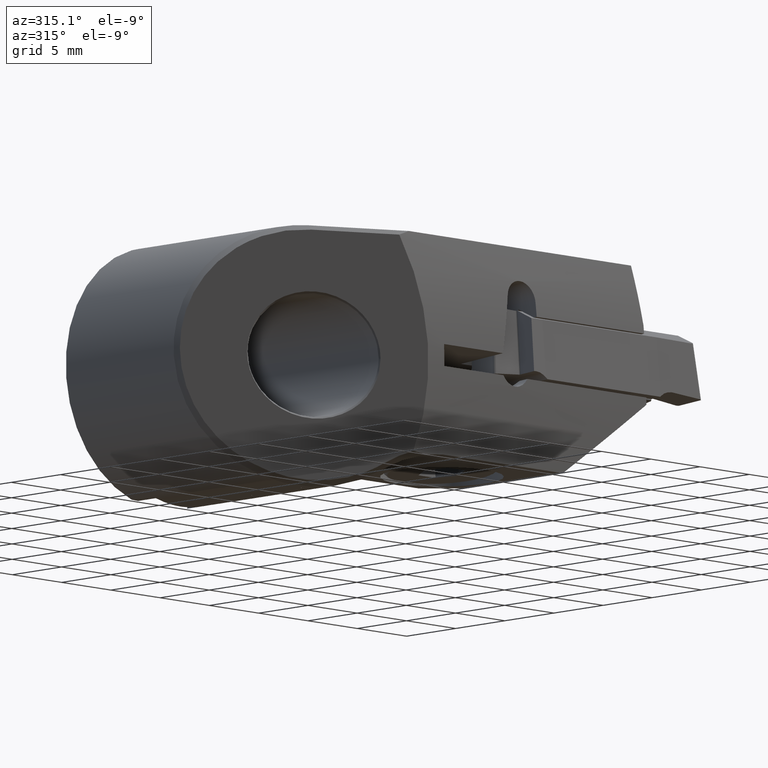
[diagram: clean part render]
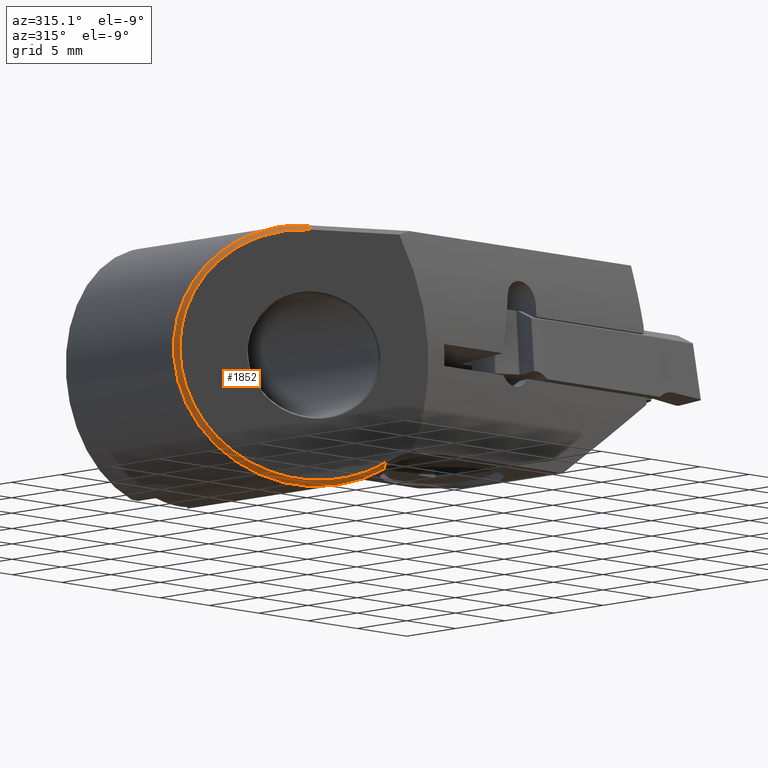
[diagram: same view with one face highlighted and labeled with its STEP entity id]
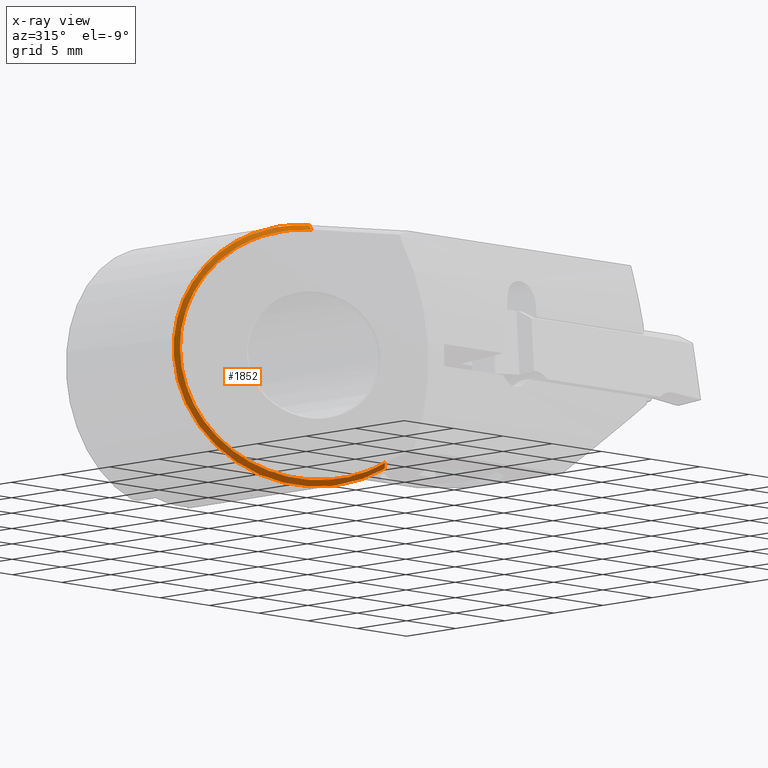
[diagram: x-ray of the same camera — body ghosted, the highlighted face saturated]
A machine part, auxiliary view. The second image highlights one B-rep face of the part: STEP entity #1852.
The next image is the same camera in x-ray: the body ghosted, the highlighted face saturated — about 0% of this face is hidden behind the body in this view.
In plain terms, the highlighted face is a freeform B-spline surface patch.
Its self-contained STEP definition (entity closure, byte-faithful):
#820=VERTEX_POINT('NONE',#2294);
#1002=VERTEX_POINT('',#2497);
#1116=VERTEX_POINT('NONE',#2624);
#1158=EDGE_CURVE('NONE',#1930,#1482,#2670,.T.);
#1340=VERTEX_POINT('NONE',#2870);
#1482=VERTEX_POINT('NONE',#3028);
#1512=EDGE_CURVE('Kante79',#1116,#1930,#3061,.T.);
#1550=EDGE_CURVE('NONE',#1482,#820,#3100,.T.);
#1796=EDGE_CURVE('NONE',#1002,#1340,#3364,.T.);
#1852=ADVANCED_FACE('NONE',(#3424),#3425,.T.);
#1930=VERTEX_POINT('NONE',#3513);
#2078=EDGE_CURVE('NONE',#1116,#1340,#3675,.F.);
#2130=EDGE_CURVE('NONE',#820,#1002,#3733,.T.);
#2294=CARTESIAN_POINT('',(0.000618198351572596,-15.2220452292226,-9.49999997988583));
#2497=CARTESIAN_POINT('',(7.98351357180836E-013,-15.2217680129675,-9.5));
#2624=CARTESIAN_POINT('',(-0.218307750716802,-15.6882864149807,9.10831493277442));
#2670=B_SPLINE_CURVE_WITH_KNOTS('',1,(#4602,#4603),.UNSPECIFIED.,.F.,.F.,(2,2),(-1.83186799063151E-015,1.0),.UNSPECIFIED.);
#2870=CARTESIAN_POINT('',(0.0,-15.2201239327675,9.5));
#3028=CARTESIAN_POINT('',(5.31889201290061,-17.5981036952943,-7.87142857142857));
#3061=B_SPLINE_CURVE_WITH_KNOTS('',3,(#5324,#5325,#5326,#5327,#5328,#5329,#5330,#5331,#5332,#5333,#5334,#5335,#5336,#5337,#5338,#5339,#5340,#5341,#5342,#5343),.UNSPECIFIED.,.F.,.F.,(4,2,2,2,2,2,2,2,2,4),(0.0,0.0625,0.125,0.25,0.375,0.5,0.625,0.75,0.875,1.0),.UNSPECIFIED.);
#3100=B_SPLINE_CURVE_WITH_KNOTS('',3,(#5477,#5478,#5479,#5480,#5481,#5482,#5483,#5484,#5485,#5486,#5487,#5488,#5489,#5490,#5491,#5492,#5493,#5494),.UNSPECIFIED.,.F.,.F.,(4,2,2,2,2,2,2,2,4),(-7.58166710054968,-7.38328808605246,-7.2977510090063,-7.18119717620627,-6.90416573886657,-6.47297689327975,-5.58899725476691,-1.83593170219639,-0.0),.UNSPECIFIED.);
#3364=B_SPLINE_CURVE_WITH_KNOTS('',3,(#6017,#6018,#6019,#6020,#6021,#6022,#6023,#6024,#6025,#6026,#6027,#6028,#6029,#6030,#6031,#6032,#6033,#6034,#6035,#6036,#6037,#6038,#6039,#6040,#6041,#6042,#6043,#6044,#6045,#6046,#6047,#6048,#6049,#6050,#6051,#6052,#6053,#6054,#6055,#6056,#6057,#6058,#6059,#6060,#6061,#6062,#6063,#6064),.UNSPECIFIED.,.F.,.F.,(4,2,2,2,2,2,2,2,2,2,2,2,2,2,2,2,2,2,2,2,2,2,2,4),(-36.9334203113329,-33.4053487834502,-29.9894835405451,-27.7570368375594,-26.5091109977231,-25.2952005188593,-21.8543621128626,-19.259615903728,-15.5416191625973,-14.0337458414089,-12.5891571785088,-11.7254172502469,-9.92319086627339,-8.28648558091916,-5.42630498673183,-3.51745974430936,-2.5516252029085,-0.422269585884727,-0.37250197227555,-0.316531602885593,-0.23047643619951,-0.163483087485524,-0.0977949879878276,-0.0),.UNSPECIFIED.);
#3424=FACE_OUTER_BOUND('',#6212,.T.);
#3425=B_SPLINE_SURFACE_WITH_KNOTS('',1,3,((#6213,#6214,#6215,#6216,#6217,#6218,#6219,#6220,#6221,#6222,#6223,#6224,#6225,#6226,#6227,#6228,#6229,#6230,#6231,#6232,#6233,#6234,#6235,#6236),(#6237,#6238,#6239,#6240,#6241,#6242,#6243,#6244,#6245,#6246,#6247,#6248,#6249,#6250,#6251,#6252,#6253,#6254,#6255,#6256,#6257,#6258,#6259,#6260),(#6261,#6262,#6263,#6264,#6265,#6266,#6267,#6268,#6269,#6270,#6271,#6272,#6273,#6274,#6275,#6276,#6277,#6278,#6279,#6280,#6281,#6282,#6283,#6284)),.UNSPECIFIED.,.F.,.F.,.F.,(2,1,2),(4,3,2,2,2,2,2,2,2,3,4),(-0.138831441890446,0.0,1.0),(4.08078557082765,4.11814394769049,4.58512365847599,5.05210336926149,5.51908308004698,5.98606279083248,6.45304250161798,6.92002221240348,7.38700192318898,7.85398163397448,7.89134001083732),.UNSPECIFIED.);
#3513=CARTESIAN_POINT('',(4.8812863068534,-18.0662661775074,-7.54688951572738));
#3675=B_SPLINE_CURVE_WITH_KNOTS('',1,(#6797,#6798),.UNSPECIFIED.,.F.,.F.,(2,2),(-4.10782519111308E-015,0.999999999999999),.UNSPECIFIED.);
#3733=B_SPLINE_CURVE_WITH_KNOTS('',3,(#6876,#6877,#6878,#6879,#6880,#6881,#6882,#6883,#6884,#6885,#6886,#6887,#6888,#6889,#6890,#6891,#6892,#6893,#6894,#6895,#6896,#6897,#6898,#6899,#6900,#6901,#6902,#6903,#6904,#6905,#6906,#6907,#6908,#6909,#6910,#6911,#6912,#6913,#6914,#6915,#6916,#6917,#6918,#6919,#6920,#6921,#6922,#6923),.UNSPECIFIED.,.F.,.F.,(4,2,2,2,2,2,2,2,2,2,2,2,2,2,2,2,2,2,2,2,2,2,2,4),(-36.9334203113329,-33.4053487834502,-29.9894835405451,-27.7570368375594,-26.5091109977231,-25.2952005188593,-21.8543621128626,-19.259615903728,-15.5416191625973,-14.0337458414089,-12.5891571785088,-11.7254172502469,-9.92319086627339,-8.28648558091916,-5.42630498673183,-3.51745974430936,-2.5516252029085,-0.422269585884727,-0.37250197227555,-0.316531602885593,-0.23047643619951,-0.163483087485524,-0.0977949879878276,-0.0),.UNSPECIFIED.);
#4602=CARTESIAN_POINT('',(4.8812863068534,-18.0662661775074,-7.54688951572738));
#4603=CARTESIAN_POINT('',(5.31889201290061,-17.5981036952943,-7.87142857142857));
#5324=CARTESIAN_POINT('',(-0.218307750716802,-15.6882864149807,9.10831493277442));
#5325=CARTESIAN_POINT('',(-0.939231730390796,-15.3521140423111,9.10881278357079));
#5326=CARTESIAN_POINT('',(-1.64140083040512,-15.0246872136546,9.0277943380202));
#5327=CARTESIAN_POINT('',(-3.00822927111444,-14.3873246443678,8.70272485422513));
#5328=CARTESIAN_POINT('',(-3.67426925165793,-14.076745100803,8.45797790619426));
#5329=CARTESIAN_POINT('',(-5.60784071521842,-13.1751059197548,7.4833636317791));
#5330=CARTESIAN_POINT('',(-6.68269428617822,-12.6738934682209,6.57680161798943));
#5331=CARTESIAN_POINT('',(-8.39974055566406,-11.8732216433532,4.25581484833666));
#5332=CARTESIAN_POINT('',(-8.95138550637928,-11.6159853782522,2.9624256474209));
#5333=CARTESIAN_POINT('',(-9.43970282895876,-11.3882792711236,0.116942618148519));
#5334=CARTESIAN_POINT('',(-9.35001156159794,-11.4301029959636,-1.28631190367711));
#5335=CARTESIAN_POINT('',(-8.50503368460321,-11.8241226509778,-4.04697122072252));
#5336=CARTESIAN_POINT('',(-7.79321231630451,-12.1560504062538,-5.2596039418345));
#5337=CARTESIAN_POINT('',(-5.7958793090467,-13.0874220834239,-7.34428337391792));
#5338=CARTESIAN_POINT('',(-4.61435432455544,-13.6383762319937,-8.10662613684678));
#5339=CARTESIAN_POINT('',(-1.89236681966931,-14.9076598509243,-9.06892104930604));
#5340=CARTESIAN_POINT('',(-0.496653564541866,-15.5584916303787,-9.21804965088741));
#5341=CARTESIAN_POINT('',(2.37213022786811,-16.8962274823704,-8.85125674089371));
#5342=CARTESIAN_POINT('',(3.6866462195982,-17.5091963560813,-8.35533551417266));
#5343=CARTESIAN_POINT('',(4.8812863068534,-18.0662661775074,-7.54688951572738));
#5477=CARTESIAN_POINT('',(5.60737923420087,-17.7351940545084,-7.66859166495732));
#5478=CARTESIAN_POINT('',(5.55340507723229,-17.7078973092329,-7.70805830762029));
#5479=CARTESIAN_POINT('',(5.49880866240535,-17.6812433643523,-7.747105464767));
#5480=CARTESIAN_POINT('',(5.41977958972636,-17.6440287798584,-7.8023607465401));
#5481=CARTESIAN_POINT('',(5.39585568708405,-17.6329386977874,-7.81892517166455));
#5482=CARTESIAN_POINT('',(5.33906259007262,-17.6070263210281,-7.85786152946893));
#5483=CARTESIAN_POINT('',(5.30921166282389,-17.5937911405351,-7.8780449302025));
#5484=CARTESIAN_POINT('',(5.20719477320614,-17.5483030482713,-7.94623068656672));
#5485=CARTESIAN_POINT('',(5.13482304696123,-17.515997254423,-7.99318559420966));
#5486=CARTESIAN_POINT('',(4.94842897483913,-17.4327255407166,-8.11055084803513));
#5487=CARTESIAN_POINT('',(4.83364034452374,-17.381380075709,-8.17947311653247));
#5488=CARTESIAN_POINT('',(4.47983937681497,-17.2230260306334,-8.38189123592361));
#5489=CARTESIAN_POINT('',(4.23696712246665,-17.1141951944787,-8.50718864597335));
#5490=CARTESIAN_POINT('',(2.94064271102491,-16.5336836136656,-9.10709589513687));
#5491=CARTESIAN_POINT('',(1.81823372194436,-16.0356431315039,-9.39407621679593));
#5492=CARTESIAN_POINT('',(0.12162600069488,-15.2766048439438,-9.51564009936091));
#5493=CARTESIAN_POINT('',(-0.438292924521506,-15.0250816466923,-9.50633157398608));
#5494=CARTESIAN_POINT('',(-0.994187575762254,-14.7759321880051,-9.44783525810013));
#6017=CARTESIAN_POINT('',(1.67912335789414,-15.9720452292226,-9.35043019058344));
#6018=CARTESIAN_POINT('',(0.818461068513763,-15.5887955004848,-9.50498544888724));
#6019=CARTESIAN_POINT('',(-0.05771091586917,-15.1957121885775,-9.53965140797884));
#6020=CARTESIAN_POINT('',(-1.76346868802188,-14.4310945091414,-9.37288601667747));
#6021=CARTESIAN_POINT('',(-2.59198267494527,-14.0617195748849,-9.17916473421398));
#6022=CARTESIAN_POINT('',(-3.9077669124436,-13.472635339385,-8.67693581659113));
#6023=CARTESIAN_POINT('',(-4.41242120447667,-13.2458643749461,-8.43196151240212));
#6024=CARTESIAN_POINT('',(-5.1651886283157,-12.9088453761495,-7.97934942296237));
#6025=CARTESIAN_POINT('',(-5.42797724586731,-12.7914253359886,-7.80307455349187));
#6026=CARTESIAN_POINT('',(-5.93017185598411,-12.5674669056822,-7.42822624299463));
#6027=CARTESIAN_POINT('',(-6.16965080708658,-12.4608862949069,-7.23066830556866));
#6028=CARTESIAN_POINT('',(-7.05293085541329,-12.0675194172905,-6.42547690889848));
#6029=CARTESIAN_POINT('',(-7.63125528012534,-11.8064350189539,-5.73058946525206));
#6030=CARTESIAN_POINT('',(-8.46266873232616,-11.4340888228158,-4.37067465971194));
#6031=CARTESIAN_POINT('',(-8.75814695807115,-11.3036509249534,-3.7456485901347));
#6032=CARTESIAN_POINT('',(-9.30872370311792,-11.0591805579348,-2.14324572592754));
#6033=CARTESIAN_POINT('',(-9.52938709996575,-10.9559619044718,-1.01682455834133));
#6034=CARTESIAN_POINT('',(-9.48364212367951,-10.9790888253366,0.756685307335979));
#6035=CARTESIAN_POINT('',(-9.42898124210477,-11.004844642251,1.26611013204123));
#6036=CARTESIAN_POINT('',(-9.24385117983115,-11.087034057622,2.24469961288713));
#6037=CARTESIAN_POINT('',(-9.1170689821755,-11.1424749265137,2.71349492576688));
#6038=CARTESIAN_POINT('',(-8.85918045033521,-11.2569581260155,3.44217628764407));
#6039=CARTESIAN_POINT('',(-8.75063470300717,-11.3054058892147,3.70930993926855));
#6040=CARTESIAN_POINT('',(-8.37992034382665,-11.4716569218997,4.51514045183068));
#6041=CARTESIAN_POINT('',(-8.08054065568991,-11.607092796588,5.03024318296089));
#6042=CARTESIAN_POINT('',(-7.42708083335364,-11.8998543753656,5.94776279413182));
#6043=CARTESIAN_POINT('',(-7.08189050132165,-12.0529419527894,6.35430363685173));
#6044=CARTESIAN_POINT('',(-6.05160062126993,-12.5119322489612,7.3813458478601));
#6045=CARTESIAN_POINT('',(-5.3137757240493,-12.8437098129782,7.92639905244566));
#6046=CARTESIAN_POINT('',(-3.99061984461548,-13.4363046516388,8.6421941001841));
#6047=CARTESIAN_POINT('',(-3.43785825908948,-13.6823899328483,8.87617845778089));
#6048=CARTESIAN_POINT('',(-2.58198260314255,-14.0646593695778,9.14736884107305));
#6049=CARTESIAN_POINT('',(-2.29089752248612,-14.1948316209128,9.22453198457995));
#6050=CARTESIAN_POINT('',(-1.34992797752473,-14.616095889507,9.42688338462799));
#6051=CARTESIAN_POINT('',(-0.690856120273167,-14.9120660559485,9.49780143348846));
#6052=CARTESIAN_POINT('',(-0.0155005656781308,-15.2132138031017,9.49999987554172));
#6053=CARTESIAN_POINT('',(-0.000367857980002046,-15.219942530553,9.5000120556564));
#6054=CARTESIAN_POINT('',(0.0317971967484515,-15.2343538552218,9.49996204319136));
#6055=CARTESIAN_POINT('',(0.0487982592369997,-15.2420372006193,9.49988983771422));
#6056=CARTESIAN_POINT('',(0.0918751100918559,-15.2616725080412,9.49959158335634));
#6057=CARTESIAN_POINT('',(0.117915841939154,-15.273698628302,9.49930370988987));
#6058=CARTESIAN_POINT('',(0.164121201298261,-15.2953139886778,9.49860375991203));
#6059=CARTESIAN_POINT('',(0.184309173940217,-15.3048526889954,9.49823332808503));
#6060=CARTESIAN_POINT('',(0.224217356716499,-15.3238957752716,9.49737422281873));
#6061=CARTESIAN_POINT('',(0.243938575721826,-15.3333969983003,9.49688800322163));
#6062=CARTESIAN_POINT('',(0.292928690414559,-15.3572245885646,9.49552801421388));
#6063=CARTESIAN_POINT('',(0.322151660870808,-15.3716389453013,9.4945810112354));
#6064=CARTESIAN_POINT('',(0.351291133669864,-15.3862121934395,9.49350275395783));
#6212=EDGE_LOOP('',(#8286,#8287,#8288,#8289,#8290,#8291));
#6213=CARTESIAN_POINT('',(5.6752671572739,-17.6645228861121,-7.71634369221319));
#6214=CARTESIAN_POINT('',(5.57672658619948,-17.6207179316913,-7.7830573936359));
#6215=CARTESIAN_POINT('',(5.47818601512506,-17.5769129772704,-7.84977109505862));
#6216=CARTESIAN_POINT('',(5.37964544405063,-17.5331080228496,-7.91648479648133));
#6217=CARTESIAN_POINT('',(4.14788830562033,-16.9855460925892,-8.75040606426529));
#6218=CARTESIAN_POINT('',(2.71843739403799,-16.3501019162058,-9.28831271758047));
#6219=CARTESIAN_POINT('',(-0.233615662550399,-15.040797413314,-9.66718922472106));
#6220=CARTESIAN_POINT('',(-1.75089383275459,-14.3633177059363,-9.50400510508099));
#6221=CARTESIAN_POINT('',(-4.55586830877303,-13.116402067666,-8.51268347729076));
#6222=CARTESIAN_POINT('',(-5.83880582909088,-12.5460885512346,-7.68454919078772));
#6223=CARTESIAN_POINT('',(-7.89717309374032,-11.6310676291275,-5.53659073762704));
#6224=CARTESIAN_POINT('',(-8.66993010588021,-11.2875483524819,-4.21955574641762));
#6225=CARTESIAN_POINT('',(-9.54091981003694,-10.900360985144,-1.37491528454868));
#6226=CARTESIAN_POINT('',(-9.6380214359032,-10.8571956954659,0.148995972533602));
#6227=CARTESIAN_POINT('',(-9.13512331109207,-11.0807526445943,3.08117879103557));
#6228=CARTESIAN_POINT('',(-8.53577663333932,-11.347184568174,4.4856423898494));
#6229=CARTESIAN_POINT('',(-6.76667929232113,-12.1336142340846,6.87748189904758));
#6230=CARTESIAN_POINT('',(-5.59922582048315,-12.6525907892614,7.86175185144415));
#6231=CARTESIAN_POINT('',(-2.94275658659836,-13.8334903156635,9.20106950665435));
#6232=CARTESIAN_POINT('',(-1.45718944157165,-14.4938802481166,9.55570120140004));
#6233=CARTESIAN_POINT('',(0.0303079798079126,-15.1551282603229,9.55437820264988));
#6234=CARTESIAN_POINT('',(0.149307773518278,-15.2080281012994,9.55427236274987));
#6235=CARTESIAN_POINT('',(0.268307567228643,-15.2609279422759,9.55416652284986));
#6236=CARTESIAN_POINT('',(0.387307360939008,-15.3138277832524,9.55406068294984));
#6237=CARTESIAN_POINT('',(5.61283121187875,-17.7295185585568,-7.67242655892502));
#6238=CARTESIAN_POINT('',(5.51485147888604,-17.6857136041359,-7.73876056309287));
#6239=CARTESIAN_POINT('',(5.41687174589332,-17.6419086497151,-7.80509456726072));
#6240=CARTESIAN_POINT('',(5.31889201290061,-17.5981036952943,-7.87142857142857));
#6241=CARTESIAN_POINT('',(4.09414535049171,-17.0505417650339,-8.70060362352672));
#6242=CARTESIAN_POINT('',(2.67283007694529,-16.4150975882268,-9.23544881169203));
#6243=CARTESIAN_POINT('',(-0.262291730434538,-15.1054887423581,-9.61201975398318));
#6244=CARTESIAN_POINT('',(-1.77106420402461,-14.4283133780333,-9.44991359780222));
#6245=CARTESIAN_POINT('',(-4.56007432512482,-13.1813977404583,-8.46423402146003));
#6246=CARTESIAN_POINT('',(-5.83571007995699,-12.6110842236603,-7.6408130140622));
#6247=CARTESIAN_POINT('',(-7.88236226376653,-11.6960633015912,-5.50507954492244));
#6248=CARTESIAN_POINT('',(-8.6507211728535,-11.35254402507,-4.19554038476286));
#6249=CARTESIAN_POINT('',(-9.51675368902929,-10.9653566574451,-1.36709003104374));
#6250=CARTESIAN_POINT('',(-9.61330266639456,-10.9221913678114,0.148147969157564));
#6251=CARTESIAN_POINT('',(-9.11326675736779,-11.1457483171381,3.06364243761075));
#6252=CARTESIAN_POINT('',(-8.51733122765591,-11.4121802405516,4.46011260993449));
#6253=CARTESIAN_POINT('',(-6.75830260371632,-12.1986099065963,6.83833910035909));
#6254=CARTESIAN_POINT('',(-5.59749362678241,-12.7175864619791,7.81700713614311));
#6255=CARTESIAN_POINT('',(-2.95614353831934,-13.8984859878351,9.14870214015271));
#6256=CARTESIAN_POINT('',(-1.47903141401565,-14.5588759205612,9.50131546897767));
#6257=CARTESIAN_POINT('',(3.3792755148872E-014,-15.2201239327675,9.5));
#6258=CARTESIAN_POINT('',(0.118322513121288,-15.273023773744,9.49989476248178));
#6259=CARTESIAN_POINT('',(0.236645026242542,-15.3259236147206,9.49978952496357));
#6260=CARTESIAN_POINT('',(0.354967539363797,-15.3788234556971,9.49968428744536));
#6261=CARTESIAN_POINT('',(5.16310639057765,-18.1976810407699,-7.35609235760756));
#6262=CARTESIAN_POINT('',(5.06916636266956,-18.1538760863491,-7.41969141031417));
#6263=CARTESIAN_POINT('',(4.97522633476148,-18.1100711319282,-7.48329046302078));
#6264=CARTESIAN_POINT('',(4.8812863068534,-18.0662661775074,-7.54688951572738));
#6265=CARTESIAN_POINT('',(3.70703595800238,-17.518704247247,-8.34187767455998));
#6266=CARTESIAN_POINT('',(2.34432151669648,-16.8832600673876,-8.85467119267));
#6267=CARTESIAN_POINT('',(-0.468844853370245,-15.5714590453614,-9.21463519911111));
#6268=CARTESIAN_POINT('',(-1.91635097044696,-14.8964758577423,-9.06029359139579));
#6269=CARTESIAN_POINT('',(-4.5903701737778,-13.6495602251756,-8.11525359475703));
#6270=CARTESIAN_POINT('',(-5.81341146307496,-13.0792467057366,-7.32578223911694));
#6271=CARTESIAN_POINT('',(-7.77568016227626,-12.1642257839412,-5.27810507663549));
#6272=CARTESIAN_POINT('',(-8.5123596261812,-11.8207065083168,-4.02255823224935));
#6273=CARTESIAN_POINT('',(-9.34268562001995,-11.4335191386246,-1.31072489215028));
#6274=CARTESIAN_POINT('',(-9.43525388168091,-11.39035384931,0.142039818406624));
#6275=CARTESIAN_POINT('',(-8.95583445365713,-11.6139108000658,2.9373284471628));
#6276=CARTESIAN_POINT('',(-8.38446935262066,-11.8803427222816,4.27622213406477));
#6277=CARTESIAN_POINT('',(-6.69796548922163,-12.6667723892926,6.55639433226131));
#6278=CARTESIAN_POINT('',(-5.58501667143885,-13.1857489461592,7.49471187873053));
#6279=CARTESIAN_POINT('',(-3.05256947425067,-14.3666484680812,8.77150108404787));
#6280=CARTESIAN_POINT('',(-1.63635868906643,-15.0270384027744,9.10957616495684));
#6281=CARTESIAN_POINT('',(-0.218307750716805,-15.6882864149807,9.10831493277442));
#6282=CARTESIAN_POINT('',(-0.104863675648835,-15.7411862559572,9.10821403419983));
#6283=CARTESIAN_POINT('',(0.00858039941913477,-15.7940860969337,9.10811313562524));
#6284=CARTESIAN_POINT('',(0.122024474487105,-15.8469859379102,9.10801223705065));
#6797=CARTESIAN_POINT('',(3.46944695195361E-014,-15.2201239327675,9.5));
#6798=CARTESIAN_POINT('',(-0.218307750716805,-15.6882864149807,9.10831493277442));
#6876=CARTESIAN_POINT('',(1.67912335789414,-15.9720452292226,-9.35043019058344));
#6877=CARTESIAN_POINT('',(0.818461068513763,-15.5887955004848,-9.50498544888724));
#6878=CARTESIAN_POINT('',(-0.05771091586917,-15.1957121885775,-9.53965140797884));
#6879=CARTESIAN_POINT('',(-1.76346868802188,-14.4310945091414,-9.37288601667747));
#6880=CARTESIAN_POINT('',(-2.59198267494527,-14.0617195748849,-9.17916473421398));
#6881=CARTESIAN_POINT('',(-3.9077669124436,-13.472635339385,-8.67693581659113));
#6882=CARTESIAN_POINT('',(-4.41242120447667,-13.2458643749461,-8.43196151240212));
#6883=CARTESIAN_POINT('',(-5.1651886283157,-12.9088453761495,-7.97934942296237));
#6884=CARTESIAN_POINT('',(-5.42797724586731,-12.7914253359886,-7.80307455349187));
#6885=CARTESIAN_POINT('',(-5.93017185598411,-12.5674669056822,-7.42822624299463));
#6886=CARTESIAN_POINT('',(-6.16965080708658,-12.4608862949069,-7.23066830556866));
#6887=CARTESIAN_POINT('',(-7.05293085541329,-12.0675194172905,-6.42547690889848));
#6888=CARTESIAN_POINT('',(-7.63125528012534,-11.8064350189539,-5.73058946525206));
#6889=CARTESIAN_POINT('',(-8.46266873232616,-11.4340888228158,-4.37067465971194));
#6890=CARTESIAN_POINT('',(-8.75814695807115,-11.3036509249534,-3.7456485901347));
#6891=CARTESIAN_POINT('',(-9.30872370311792,-11.0591805579348,-2.14324572592754));
#6892=CARTESIAN_POINT('',(-9.52938709996575,-10.9559619044718,-1.01682455834133));
#6893=CARTESIAN_POINT('',(-9.48364212367951,-10.9790888253366,0.756685307335979));
#6894=CARTESIAN_POINT('',(-9.42898124210477,-11.004844642251,1.26611013204123));
#6895=CARTESIAN_POINT('',(-9.24385117983115,-11.087034057622,2.24469961288713));
#6896=CARTESIAN_POINT('',(-9.1170689821755,-11.1424749265137,2.71349492576688));
#6897=CARTESIAN_POINT('',(-8.85918045033521,-11.2569581260155,3.44217628764407));
#6898=CARTESIAN_POINT('',(-8.75063470300717,-11.3054058892147,3.70930993926855));
#6899=CARTESIAN_POINT('',(-8.37992034382665,-11.4716569218997,4.51514045183068));
#6900=CARTESIAN_POINT('',(-8.08054065568991,-11.607092796588,5.03024318296089));
#6901=CARTESIAN_POINT('',(-7.42708083335364,-11.8998543753656,5.94776279413182));
#6902=CARTESIAN_POINT('',(-7.08189050132165,-12.0529419527894,6.35430363685173));
#6903=CARTESIAN_POINT('',(-6.05160062126993,-12.5119322489612,7.3813458478601));
#6904=CARTESIAN_POINT('',(-5.3137757240493,-12.8437098129782,7.92639905244566));
#6905=CARTESIAN_POINT('',(-3.99061984461548,-13.4363046516388,8.6421941001841));
#6906=CARTESIAN_POINT('',(-3.43785825908948,-13.6823899328483,8.87617845778089));
#6907=CARTESIAN_POINT('',(-2.58198260314255,-14.0646593695778,9.14736884107305));
#6908=CARTESIAN_POINT('',(-2.29089752248612,-14.1948316209128,9.22453198457995));
#6909=CARTESIAN_POINT('',(-1.34992797752473,-14.616095889507,9.42688338462799));
#6910=CARTESIAN_POINT('',(-0.690856120273167,-14.9120660559485,9.49780143348846));
#6911=CARTESIAN_POINT('',(-0.0155005656781308,-15.2132138031017,9.49999987554172));
#6912=CARTESIAN_POINT('',(-0.000367857980002046,-15.219942530553,9.5000120556564));
#6913=CARTESIAN_POINT('',(0.0317971967484515,-15.2343538552218,9.49996204319136));
#6914=CARTESIAN_POINT('',(0.0487982592369997,-15.2420372006193,9.49988983771422));
#6915=CARTESIAN_POINT('',(0.0918751100918559,-15.2616725080412,9.49959158335634));
#6916=CARTESIAN_POINT('',(0.117915841939154,-15.273698628302,9.49930370988987));
#6917=CARTESIAN_POINT('',(0.164121201298261,-15.2953139886778,9.49860375991203));
#6918=CARTESIAN_POINT('',(0.184309173940217,-15.3048526889954,9.49823332808503));
#6919=CARTESIAN_POINT('',(0.224217356716499,-15.3238957752716,9.49737422281873));
#6920=CARTESIAN_POINT('',(0.243938575721826,-15.3333969983003,9.49688800322163));
#6921=CARTESIAN_POINT('',(0.292928690414559,-15.3572245885646,9.49552801421388));
#6922=CARTESIAN_POINT('',(0.322151660870808,-15.3716389453013,9.4945810112354));
#6923=CARTESIAN_POINT('',(0.351291133669864,-15.3862121934395,9.49350275395783));
#8286=ORIENTED_EDGE('',*,*,#2078,.T.);
#8287=ORIENTED_EDGE('',*,*,#1796,.F.);
#8288=ORIENTED_EDGE('',*,*,#2130,.F.);
#8289=ORIENTED_EDGE('',*,*,#1550,.F.);
#8290=ORIENTED_EDGE('',*,*,#1158,.F.);
#8291=ORIENTED_EDGE('',*,*,#1512,.F.);